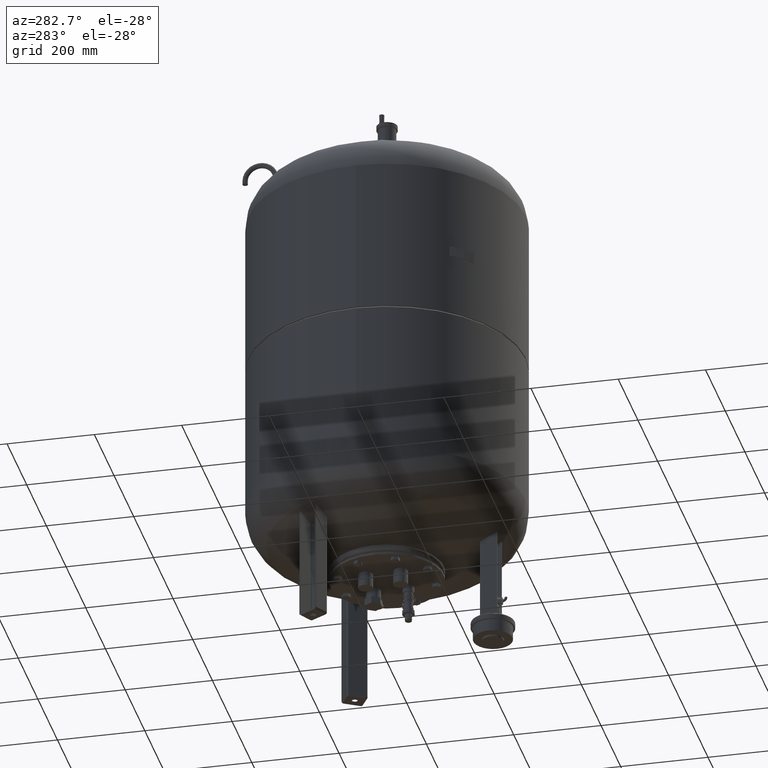
[diagram: clean part render]
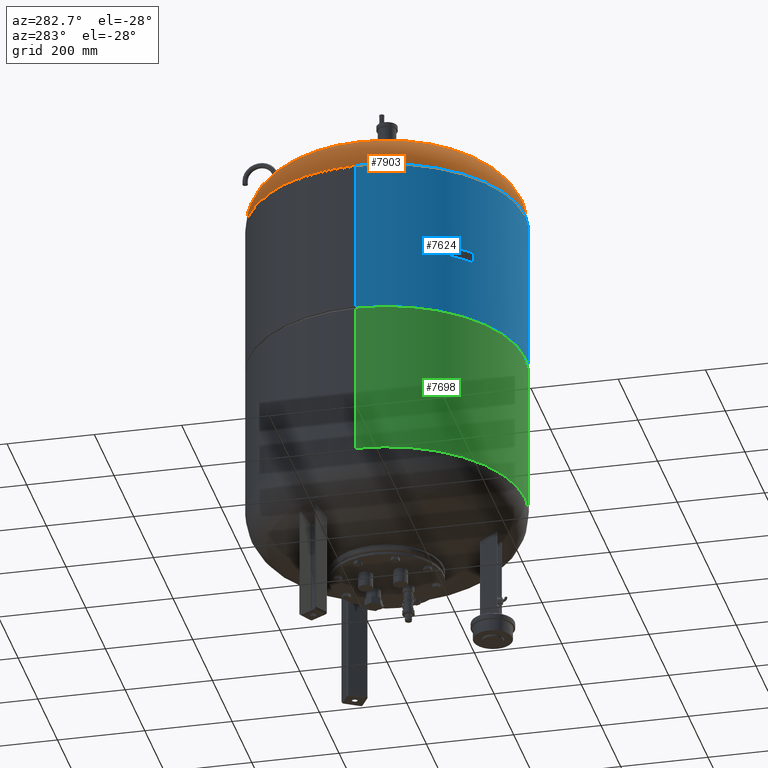
[diagram: same view with three faces highlighted in distinct colors, each labeled with its STEP entity id]
A machine part, auxiliary view with three faces highlighted in distinct colors.
Their STEP definitions:

[orange] entity #7903 — the highlighted toroidal blend (fillet) surface has major radius 218 mm and minor (blend) radius 99 mm.
#7808=CARTESIAN_POINT('',(-317.000000000000060,1.070324E-014,1068.240550627371500));
#7809=VERTEX_POINT('',#7808);
#7833=CARTESIAN_POINT('',(1.282117E-018,-317.0,1068.240550627371200));
#7834=VERTEX_POINT('',#7833);
#7842=CARTESIAN_POINT('',(-1.556097E-014,4.952455E-014,1068.240550627371200));
#7843=DIRECTION('',(0.0,0.0,-1.0));
#7844=DIRECTION('',(-1.0,0.0,0.0));
#7845=AXIS2_PLACEMENT_3D('',#7842,#7843,#7844);
#7846=CIRCLE('',#7845,317.000000000000060);
#7847=EDGE_CURVE('',#7834,#7809,#7846,.T.);
#7852=CARTESIAN_POINT('',(-3.639005E-030,4.952455E-014,1068.240550627371200));
#7853=DIRECTION('',(-9.619823E-017,3.061617E-016,-1.0));
#7854=DIRECTION('',(0.0,1.0,0.0));
#7855=AXIS2_PLACEMENT_3D('',#7852,#7853,#7854);
#7856=TOROIDAL_SURFACE('',#7855,218.0,99.0);
#7857=CARTESIAN_POINT('',(-3.882130E-014,317.000000000000110,1068.240550627371200));
#7858=VERTEX_POINT('',#7857);
#7859=CARTESIAN_POINT('',(-2.507790E-014,270.639024390243830,1152.086439681297600));
#7860=VERTEX_POINT('',#7859);
#7861=CARTESIAN_POINT('',(-2.669730E-014,218.000000000000060,1068.240550627371200));
#7862=DIRECTION('',(1.0,0.0,0.0));
#7863=DIRECTION('',(0.0,1.0,0.0));
#7864=AXIS2_PLACEMENT_3D('',#7861,#7862,#7863);
#7865=CIRCLE('',#7864,99.0);
#7866=EDGE_CURVE('',#7858,#7860,#7865,.T.);
#7867=ORIENTED_EDGE('',*,*,#7866,.F.);
#7868=CARTESIAN_POINT('',(-1.556097E-014,4.952455E-014,1068.240550627371200));
#7869=DIRECTION('',(0.0,0.0,-1.0));
#7870=DIRECTION('',(-1.0,0.0,0.0));
#7871=AXIS2_PLACEMENT_3D('',#7868,#7869,#7870);
#7872=CIRCLE('',#7871,317.000000000000060);
#7873=EDGE_CURVE('',#7809,#7858,#7872,.T.);
#7874=ORIENTED_EDGE('',*,*,#7873,.F.);
#7875=ORIENTED_EDGE('',*,*,#7847,.F.);
#7876=CARTESIAN_POINT('',(8.066920E-015,-270.639024390243830,1152.086439681297600));
#7877=VERTEX_POINT('',#7876);
#7878=CARTESIAN_POINT('',(8.817081E-019,-217.999999999999940,1068.240550627371200));
#7879=DIRECTION('',(-1.0,0.0,0.0));
#7880=DIRECTION('',(0.0,-1.0,0.0));
#7881=AXIS2_PLACEMENT_3D('',#7878,#7879,#7880);
#7882=CIRCLE('',#7881,99.0);
#7883=EDGE_CURVE('',#7834,#7877,#7882,.T.);
#7884=ORIENTED_EDGE('',*,*,#7883,.T.);
#7885=CARTESIAN_POINT('',(-270.639024390243830,-9.289573E-015,1152.086439681297600));
#7886=VERTEX_POINT('',#7885);
#7887=CARTESIAN_POINT('',(-7.495146E-015,2.385415E-014,1152.086439681297600));
#7888=DIRECTION('',(0.0,0.0,-1.0));
#7889=DIRECTION('',(-1.0,0.0,0.0));
#7890=AXIS2_PLACEMENT_3D('',#7887,#7888,#7889);
#7891=CIRCLE('',#7890,270.639024390243830);
#7892=EDGE_CURVE('',#7877,#7886,#7891,.T.);
#7893=ORIENTED_EDGE('',*,*,#7892,.T.);
#7894=CARTESIAN_POINT('',(-7.495146E-015,2.385415E-014,1152.086439681297600));
#7895=DIRECTION('',(0.0,0.0,-1.0));
#7896=DIRECTION('',(-1.0,0.0,0.0));
#7897=AXIS2_PLACEMENT_3D('',#7894,#7895,#7896);
#7898=CIRCLE('',#7897,270.639024390243830);
#7899=EDGE_CURVE('',#7886,#7860,#7898,.T.);
#7900=ORIENTED_EDGE('',*,*,#7899,.T.);
#7901=EDGE_LOOP('',(#7867,#7874,#7875,#7884,#7893,#7900));
#7902=FACE_OUTER_BOUND('',#7901,.T.);
#7903=ADVANCED_FACE('',(#7902),#7856,.T.);

[blue] entity #7624 — the highlighted cylindrical surface (partial cylindrical patch) has radius 317 mm, axis along (0, 0, 1).
#7583=CARTESIAN_POINT('',(8.343982E-015,0.0,889.0));
#7584=DIRECTION('',(4.661443E-017,0.0,1.0));
#7585=DIRECTION('',(1.0,0.0,0.0));
#7586=AXIS2_PLACEMENT_3D('',#7583,#7584,#7585);
#7587=CYLINDRICAL_SURFACE('',#7586,317.0);
#7588=CARTESIAN_POINT('',(317.0,0.0,1068.0));
#7589=VERTEX_POINT('',#7588);
#7590=CARTESIAN_POINT('',(316.999999999999940,0.0,710.0));
#7591=VERTEX_POINT('',#7590);
#7592=CARTESIAN_POINT('',(317.0,0.0,1068.0));
#7593=DIRECTION('',(0.0,0.0,-1.0));
#7594=VECTOR('',#7593,358.0);
#7595=LINE('',#7592,#7594);
#7596=EDGE_CURVE('',#7589,#7591,#7595,.T.);
#7597=ORIENTED_EDGE('',*,*,#7596,.F.);
#7598=CARTESIAN_POINT('',(-317.0,-3.882002E-014,1068.0));
#7599=VERTEX_POINT('',#7598);
#7600=CARTESIAN_POINT('',(1.668796E-014,0.0,1068.0));
#7601=DIRECTION('',(0.0,0.0,1.0));
#7602=DIRECTION('',(1.0,0.0,0.0));
#7603=AXIS2_PLACEMENT_3D('',#7600,#7601,#7602);
#7604=CIRCLE('',#7603,317.0);
#7605=EDGE_CURVE('',#7599,#7589,#7604,.T.);
#7606=ORIENTED_EDGE('',*,*,#7605,.F.);
#7607=CARTESIAN_POINT('',(-317.0,-3.882002E-014,710.0));
#7608=VERTEX_POINT('',#7607);
#7609=CARTESIAN_POINT('',(-317.0,-3.882002E-014,1068.0));
#7610=DIRECTION('',(0.0,0.0,-1.0));
#7611=VECTOR('',#7610,358.0);
#7612=LINE('',#7609,#7611);
#7613=EDGE_CURVE('',#7599,#7608,#7612,.T.);
#7614=ORIENTED_EDGE('',*,*,#7613,.T.);
#7615=CARTESIAN_POINT('',(0.0,0.0,710.0));
#7616=DIRECTION('',(0.0,0.0,1.0));
#7617=DIRECTION('',(1.0,0.0,0.0));
#7618=AXIS2_PLACEMENT_3D('',#7615,#7616,#7617);
#7619=CIRCLE('',#7618,316.999999999999940);
#7620=EDGE_CURVE('',#7608,#7591,#7619,.T.);
#7621=ORIENTED_EDGE('',*,*,#7620,.T.);
#7622=EDGE_LOOP('',(#7597,#7606,#7614,#7621));
#7623=FACE_OUTER_BOUND('',#7622,.T.);
#7624=ADVANCED_FACE('',(#7623),#7587,.T.);

[green] entity #7698 — the highlighted cylindrical surface (partial cylindrical patch) has radius 317 mm, axis along (0, 0, 1).
#7632=CARTESIAN_POINT('',(316.999999999999830,0.0,706.500000000000000));
#7633=VERTEX_POINT('',#7632);
#7649=CARTESIAN_POINT('',(-316.999999999999940,-3.882002E-014,706.500000000000000));
#7650=VERTEX_POINT('',#7649);
#7657=CARTESIAN_POINT('',(-1.631505E-016,0.0,706.500000000000000));
#7658=DIRECTION('',(0.0,0.0,1.0));
#7659=DIRECTION('',(1.0,0.0,0.0));
#7660=AXIS2_PLACEMENT_3D('',#7657,#7658,#7659);
#7661=CIRCLE('',#7660,316.999999999999830);
#7662=EDGE_CURVE('',#7650,#7633,#7661,.T.);
#7667=CARTESIAN_POINT('',(-9.262287E-015,0.0,511.299999999999900));
#7668=DIRECTION('',(4.661443E-017,0.0,1.0));
#7669=DIRECTION('',(1.0,0.0,0.0));
#7670=AXIS2_PLACEMENT_3D('',#7667,#7668,#7669);
#7671=CYLINDRICAL_SURFACE('',#7670,316.999999999999940);
#7672=CARTESIAN_POINT('',(317.0,0.0,351.999999999999830));
#7673=VERTEX_POINT('',#7672);
#7674=CARTESIAN_POINT('',(316.999999999999830,0.0,706.500000000000000));
#7675=DIRECTION('',(0.0,0.0,-1.0));
#7676=VECTOR('',#7675,354.500000000000170);
#7677=LINE('',#7674,#7676);
#7678=EDGE_CURVE('',#7633,#7673,#7677,.T.);
#7679=ORIENTED_EDGE('',*,*,#7678,.F.);
#7680=ORIENTED_EDGE('',*,*,#7662,.F.);
#7681=CARTESIAN_POINT('',(-316.999999999999940,-3.882002E-014,351.999999999999890));
#7682=VERTEX_POINT('',#7681);
#7683=CARTESIAN_POINT('',(-316.999999999999940,-3.882002E-014,706.500000000000000));
#7684=DIRECTION('',(0.0,0.0,-1.0));
#7685=VECTOR('',#7684,354.500000000000110);
#7686=LINE('',#7683,#7685);
#7687=EDGE_CURVE('',#7650,#7682,#7686,.T.);
#7688=ORIENTED_EDGE('',*,*,#7687,.T.);
#7689=CARTESIAN_POINT('',(-1.668796E-014,0.0,351.999999999999830));
#7690=DIRECTION('',(0.0,0.0,1.0));
#7691=DIRECTION('',(1.0,0.0,0.0));
#7692=AXIS2_PLACEMENT_3D('',#7689,#7690,#7691);
#7693=CIRCLE('',#7692,317.0);
#7694=EDGE_CURVE('',#7682,#7673,#7693,.T.);
#7695=ORIENTED_EDGE('',*,*,#7694,.T.);
#7696=EDGE_LOOP('',(#7679,#7680,#7688,#7695));
#7697=FACE_OUTER_BOUND('',#7696,.T.);
#7698=ADVANCED_FACE('',(#7697),#7671,.T.);